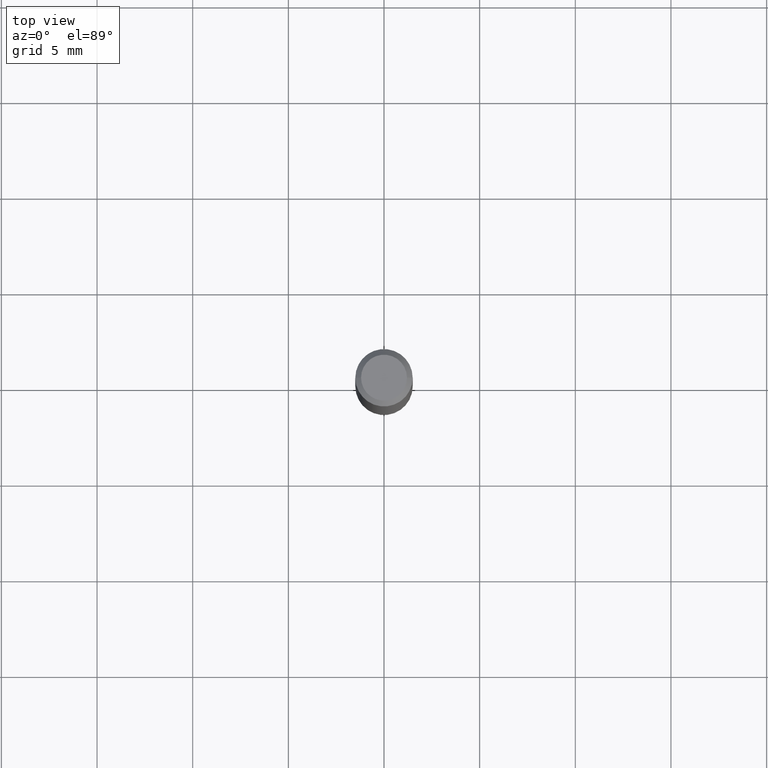
[diagram: clean part render]
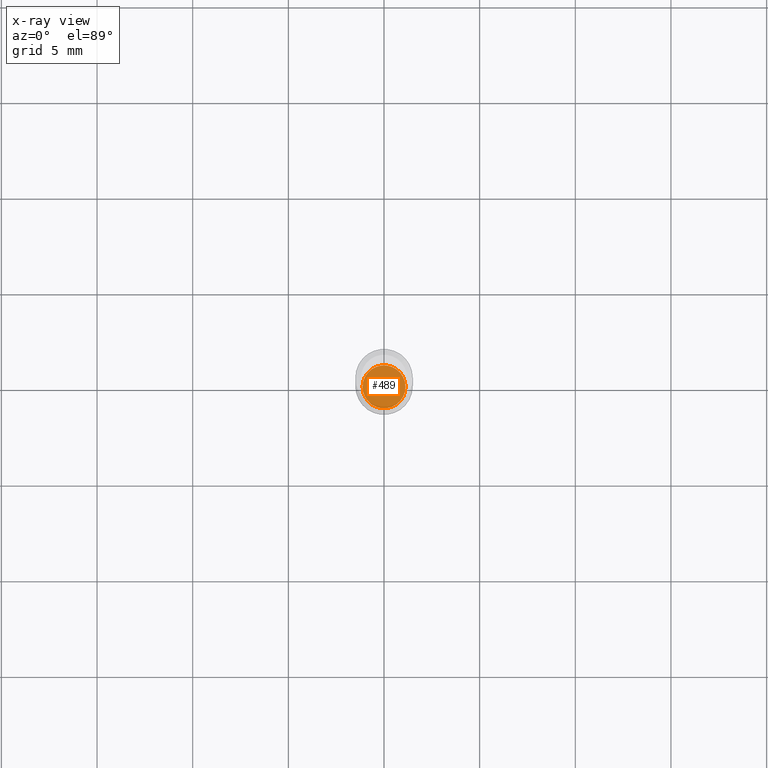
[diagram: x-ray — body ghosted, one internal face saturated and labeled with its STEP entity id]
A machine part, top view, then the same camera in x-ray: the body is ghosted and one INTERNAL B-rep face — a face not visible from any outside direction — is saturated and labeled: STEP entity #489.
In plain terms, the highlighted planar face has unit normal (-0, 0, 1).
Its self-contained STEP definition (entity closure, byte-faithful):
#2 = PLANE ( 'NONE',  #380 ) ;
#14 = AXIS2_PLACEMENT_3D ( 'NONE', #165, #99, #434 ) ;
#45 = CARTESIAN_POINT ( 'NONE',  ( 2.676565608369631794E-29, -3.821426325363822773E-15, -1.094499999999999806 ) ) ;
#56 = EDGE_CURVE ( 'NONE', #268, #310, #254, .T. ) ;
#99 = DIRECTION ( 'NONE',  ( -2.445468806185136597E-29, 3.491481338843145583E-15, 1.000000000000000000 ) ) ;
#108 = DIRECTION ( 'NONE',  ( -2.438088387897960049E-29, 3.491481338843145188E-15, 1.000000000000000000 ) ) ;
#138 = EDGE_CURVE ( 'NONE', #310, #268, #256, .T. ) ;
#140 = EDGE_LOOP ( 'NONE', ( #429, #159 ) ) ;
#149 = AXIS2_PLACEMENT_3D ( 'NONE', #213, #359, #366 ) ;
#159 = ORIENTED_EDGE ( 'NONE', *, *, #56, .F. ) ;
#162 = CARTESIAN_POINT ( 'NONE',  ( 0.04419999999999999624, -4.130073275717555648E-15, -1.094499999999999806 ) ) ;
#165 = CARTESIAN_POINT ( 'NONE',  ( 2.676565608369631794E-29, -3.821426325363822773E-15, -1.094499999999999806 ) ) ;
#213 = CARTESIAN_POINT ( 'NONE',  ( 2.676565608369631794E-29, -3.821426325363822773E-15, -1.094499999999999806 ) ) ;
#254 = CIRCLE ( 'NONE', #14, 0.04419999999999999624 ) ;
#256 = CIRCLE ( 'NONE', #149, 0.04419999999999999624 ) ;
#268 = VERTEX_POINT ( 'NONE', #464 ) ;
#310 = VERTEX_POINT ( 'NONE', #162 ) ;
#336 = FACE_OUTER_BOUND ( 'NONE', #140, .T. ) ;
#345 = DIRECTION ( 'NONE',  ( 1.000000000000000000, -6.982962677686265922E-15, 4.876176775795935793E-29 ) ) ;
#359 = DIRECTION ( 'NONE',  ( -2.445468806185136597E-29, 3.491481338843145583E-15, 1.000000000000000000 ) ) ;
#366 = DIRECTION ( 'NONE',  ( 1.000000000000000000, -6.982962677686265922E-15, 0.000000000000000000 ) ) ;
#380 = AXIS2_PLACEMENT_3D ( 'NONE', #45, #108, #345 ) ;
#429 = ORIENTED_EDGE ( 'NONE', *, *, #138, .F. ) ;
#434 = DIRECTION ( 'NONE',  ( 1.000000000000000000, -6.982962677686265922E-15, 0.000000000000000000 ) ) ;
#464 = CARTESIAN_POINT ( 'NONE',  ( -0.04419999999999999624, -3.504717208983747563E-15, -1.094499999999999806 ) ) ;
#489 = ADVANCED_FACE ( 'NONE', ( #336 ), #2, .F. ) ;